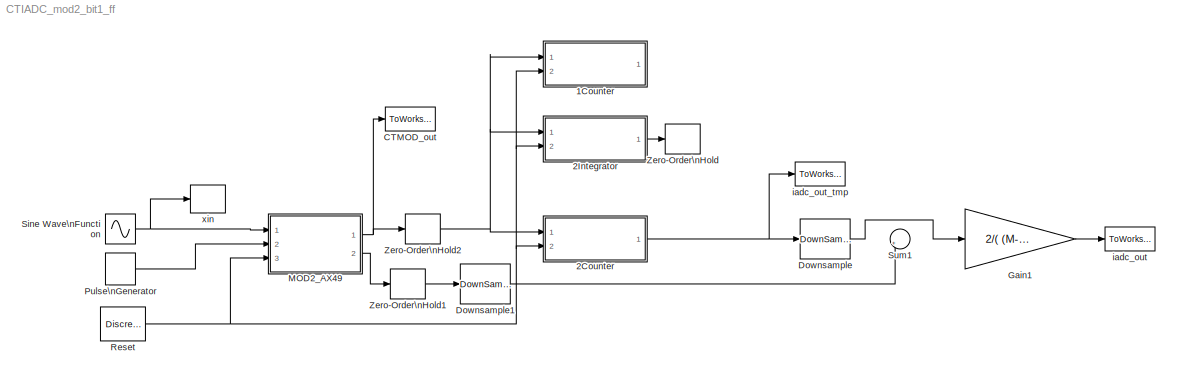
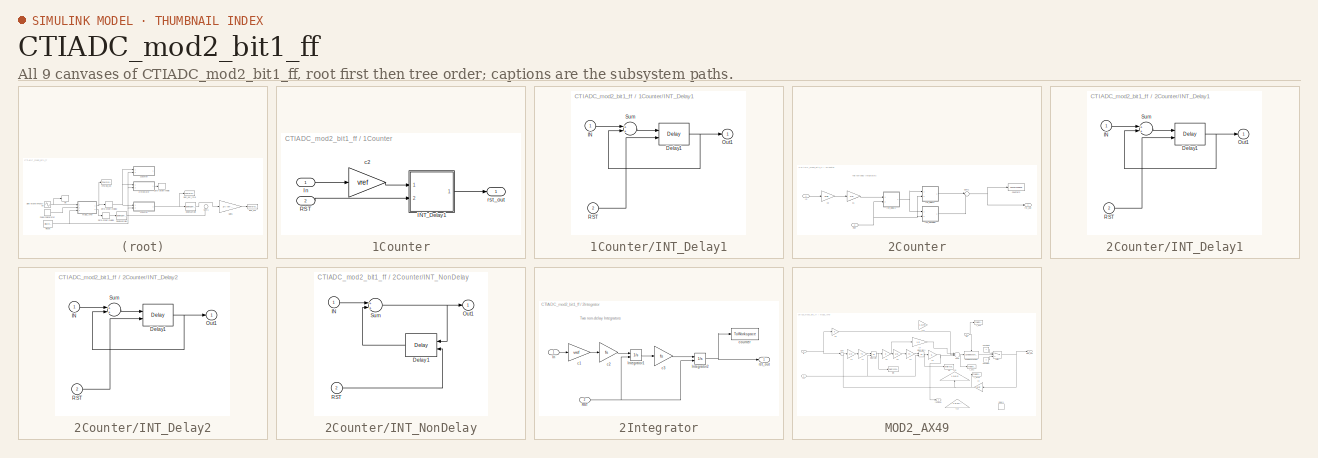
[diagram: thumbnail index - all 9 canvases of the model, root first then tree order]
MODEL CTIADC_mod2_bit1_ff
KIND model
BLOCK [SubSystem] 1Counter
  Commented = on
  Ports = [2, 1]
  RequestExecContextInheritance = off
  SID = 1295
BLOCK [SubSystem] 1Counter/INT_Delay1
  Ports = [2, 1]
  RequestExecContextInheritance = off
  SID = 1298
BLOCK [Delay] 1Counter/INT_Delay1/Delay1
  DelayLength = 1
  ExternalReset = Rising
  InitialCondition = 0
  InputPortMap = u0,r5
  Ports = [2, 1]
  SID = 1301
  UserData = DataTag0
  UserDataPersistent = on
BLOCK [Inport] 1Counter/INT_Delay1/IN
  IconDisplay = Port number
  SID = 1299
BLOCK [Outport] 1Counter/INT_Delay1/Out1
  IconDisplay = Port number
  SID = 1303
  VectorParamsAs1DForOutWhenUnconnected = off
BLOCK [Inport] 1Counter/INT_Delay1/RST
  IconDisplay = Port number
  Port = 2
  SID = 1300
BLOCK [Sum] 1Counter/INT_Delay1/Sum
  Ports = [2, 1]
  SID = 1302
BLOCK [Inport] 1Counter/In
  IconDisplay = Port number
  SID = 1296
BLOCK [Inport] 1Counter/RST
  IconDisplay = Port number
  Port = 2
  SID = 1297
BLOCK [Gain] 1Counter/c2
  Gain = vref
  SID = 1318
BLOCK [Outport] 1Counter/rst_out
  IconDisplay = Port number
  SID = 1320
  VectorParamsAs1DForOutWhenUnconnected = off
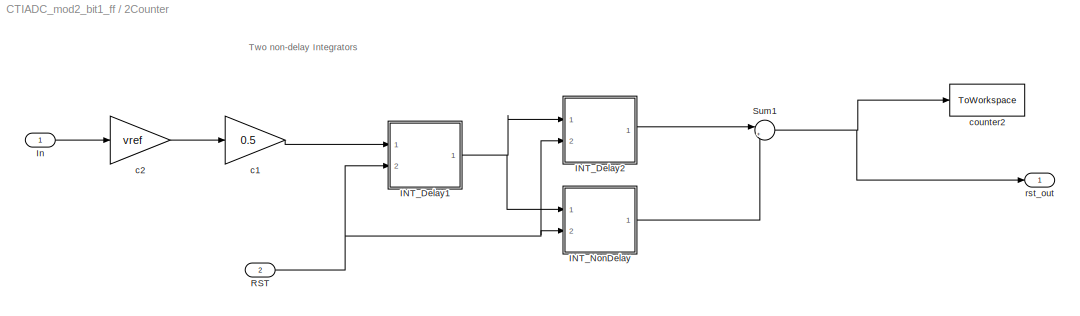
BLOCK [SubSystem] 2Counter
  Ports = [2, 1]
  RequestExecContextInheritance = off
  SID = 1257
BLOCK [SubSystem] 2Counter/INT_Delay1
  Ports = [2, 1]
  RequestExecContextInheritance = off
  SID = 1261
BLOCK [Delay] 2Counter/INT_Delay1/Delay1
  DelayLength = 1
  ExternalReset = Rising
  InitialCondition = 0
  InputPortMap = u0,r5
  Ports = [2, 1]
  SID = 1264
  UserData = DataTag1
  UserDataPersistent = on
BLOCK [Inport] 2Counter/INT_Delay1/IN
  IconDisplay = Port number
  SID = 1262
BLOCK [Outport] 2Counter/INT_Delay1/Out1
  IconDisplay = Port number
  SID = 1266
  VectorParamsAs1DForOutWhenUnconnected = off
BLOCK [Inport] 2Counter/INT_Delay1/RST
  IconDisplay = Port number
  Port = 2
  SID = 1263
BLOCK [Sum] 2Counter/INT_Delay1/Sum
  Ports = [2, 1]
  SID = 1265
BLOCK [SubSystem] 2Counter/INT_Delay2
  Ports = [2, 1]
  RequestExecContextInheritance = off
  SID = 1267
BLOCK [Delay] 2Counter/INT_Delay2/Delay1
  DelayLength = 1
  ExternalReset = Rising
  InitialCondition = 0
  InputPortMap = u0,r5
  Ports = [2, 1]
  SID = 1270
  UserData = DataTag2
  UserDataPersistent = on
BLOCK [Inport] 2Counter/INT_Delay2/IN
  IconDisplay = Port number
  SID = 1268
BLOCK [Outport] 2Counter/INT_Delay2/Out1
  IconDisplay = Port number
  SID = 1272
  VectorParamsAs1DForOutWhenUnconnected = off
BLOCK [Inport] 2Counter/INT_Delay2/RST
  IconDisplay = Port number
  Port = 2
  SID = 1269
BLOCK [Sum] 2Counter/INT_Delay2/Sum
  Ports = [2, 1]
  SID = 1271
BLOCK [SubSystem] 2Counter/INT_NonDelay
  Ports = [2, 1]
  RequestExecContextInheritance = off
  SID = 1277
BLOCK [Delay] 2Counter/INT_NonDelay/Delay1
  DelayLength = 1
  ExternalReset = Rising
  InitialCondition = 0
  InputPortMap = u0,r5
  Ports = [2, 1]
  SID = 1280
  UserData = DataTag3
  UserDataPersistent = on
BLOCK [Inport] 2Counter/INT_NonDelay/IN
  IconDisplay = Port number
  SID = 1278
BLOCK [Outport] 2Counter/INT_NonDelay/Out1
  IconDisplay = Port number
  SID = 1282
  VectorParamsAs1DForOutWhenUnconnected = off
BLOCK [Inport] 2Counter/INT_NonDelay/RST
  IconDisplay = Port number
  Port = 2
  SID = 1279
BLOCK [Sum] 2Counter/INT_NonDelay/Sum
  Ports = [2, 1]
  SID = 1281
BLOCK [Inport] 2Counter/In
  IconDisplay = Port number
  SID = 1258
BLOCK [Inport] 2Counter/RST
  IconDisplay = Port number
  Port = 2
  SID = 1259
BLOCK [Sum] 2Counter/Sum1
  IconShape = round
  InputSameDT = off
  Inputs = |++
  OutDataTypeStr = Inherit: Inherit via internal rule
  Ports = [2, 1]
  SID = 1283
  SaturateOnIntegerOverflow = off
BLOCK [Gain] 2Counter/c1
  Gain = 0.5
  SID = 1273
BLOCK [Gain] 2Counter/c2
  Gain = vref
  SID = 1294
BLOCK [ToWorkspace] 2Counter/counter2
  MaxDataPoints = inf
  Ports = [1]
  SID = 1274
  SampleTime = -1
  VariableName = counter2
BLOCK [Outport] 2Counter/rst_out
  IconDisplay = Port number
  SID = 1275
  VectorParamsAs1DForOutWhenUnconnected = off
BLOCK [SubSystem] 2Integrator
  Commented = on
  Ports = [2, 1]
  RequestExecContextInheritance = off
  SID = 1233
BLOCK [Inport] 2Integrator/In
  IconDisplay = Port number
  SID = 1234
BLOCK [Integrator] 2Integrator/Integrator1
  ExternalReset = rising
  Ports = [2, 1]
  SID = 1253
BLOCK [Integrator] 2Integrator/Integrator2
  ExternalReset = rising
  Ports = [2, 1]
  SID = 1254
BLOCK [Inport] 2Integrator/RST
  IconDisplay = Port number
  Port = 2
  SID = 1235
BLOCK [Gain] 2Integrator/c1
  Gain = vref
  SID = 1249
BLOCK [Gain] 2Integrator/c2
  Gain = fs
  SID = 1285
BLOCK [Gain] 2Integrator/c3
  Gain = fs
  SID = 1286
BLOCK [ToWorkspace] 2Integrator/counter
  MaxDataPoints = inf
  Ports = [1]
  SID = 1250
  SampleTime = -1
  VariableName = counter
BLOCK [Outport] 2Integrator/rst_out
  IconDisplay = Port number
  SID = 1251
  VectorParamsAs1DForOutWhenUnconnected = off
BLOCK [ToWorkspace] CTMOD_out
  Commented = on
  MaxDataPoints = inf
  Ports = [1]
  SID = 1289
  SampleTime = Ts
  VariableName = CTMOD_out
BLOCK [DownSample] Downsample
  InputProcessing = Elements as channels (sample based)
  N = OSR
  RateOptions = Allow multirate processing
  SID = 1236
  phase = OSR-1
BLOCK [DownSample] Downsample1
  InputProcessing = Elements as channels (sample based)
  N = OSR
  RateOptions = Allow multirate processing
  SID = 1292
  phase = OSR-1
BLOCK [Gain] Gain1
  Gain = 2/( (M-1)*(M) )
  OutDataTypeStr = Inherit: Inherit via internal rule
  ParamDataTypeStr = Inherit: Inherit via internal rule
  SID = 1256
  SaturateOnIntegerOverflow = off
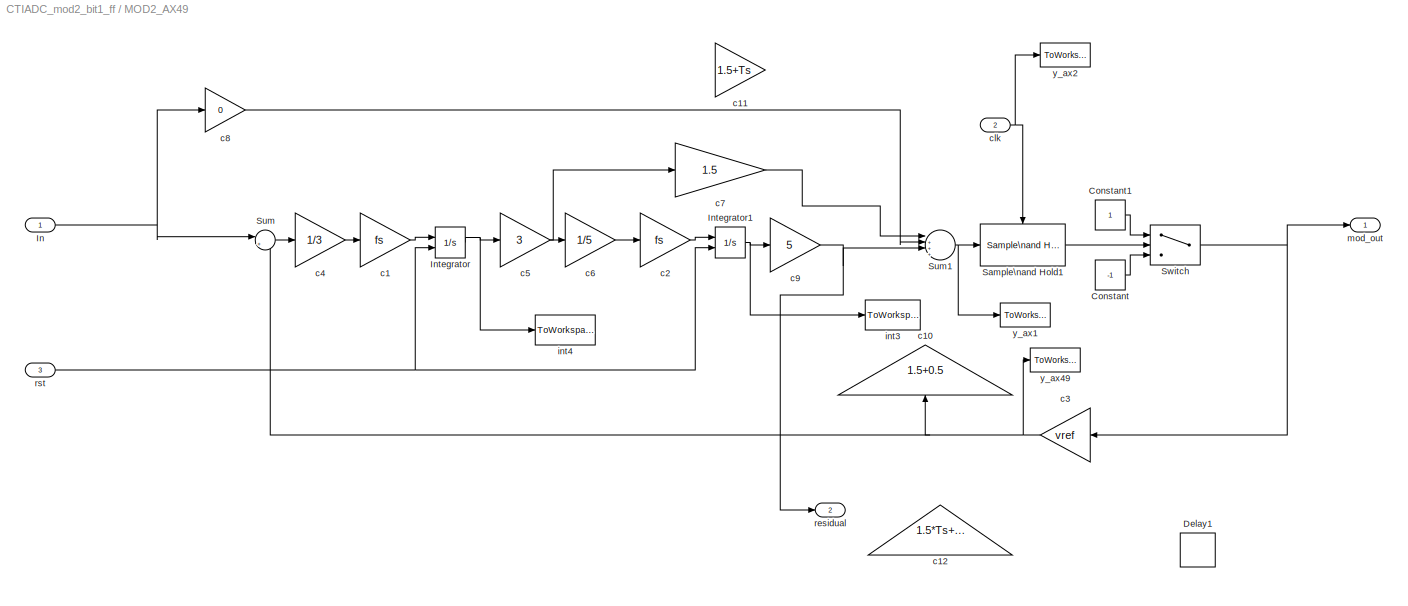
BLOCK [SubSystem] MOD2_AX49
  Ports = [3, 2]
  RequestExecContextInheritance = off
  SID = 988
BLOCK [Constant] MOD2_AX49/Constant
  SID = 1156
  Value = -1
BLOCK [Constant] MOD2_AX49/Constant1
  SID = 1157
BLOCK [Delay] MOD2_AX49/Delay1
  Commented = on
  DelayLength = 1
  InitialCondition = 0
  InputPortMap = u0
  Ports = [1, 1]
  SID = 1229
  SampleTime = Ts
BLOCK [Inport] MOD2_AX49/In
  IconDisplay = Port number
  SID = 989
BLOCK [Integrator] MOD2_AX49/Integrator
  ExternalReset = rising
  Ports = [2, 1]
  SID = 1124
BLOCK [Integrator] MOD2_AX49/Integrator1
  ExternalReset = rising
  Ports = [2, 1]
  SID = 1164
BLOCK [Reference] MOD2_AX49/Sample\nand Hold1  REF=dspsigops/Sample\nand Hold
  Ports = [1, 1, 0, 1]
  RTWMemSecDataConstants = Inherit from model
  RTWMemSecDataInternal = Inherit from model
  RTWMemSecDataParameters = Inherit from model
  RTWMemSecFuncExecute = Inherit from model
  RTWMemSecFuncInitTerm = Inherit from model
  SID = 1174
  SourceBlock = dspsigops/Sample\nand Hold
  SourceProductBaseCode = DS
  SourceProductName = DSP System Toolbox
  SourceType = Sample and Hold
  initCond = 0
  latchinput = off
  trig = Rising edge
BLOCK [Sum] MOD2_AX49/Sum
  IconShape = round
  InputSameDT = off
  Inputs = |+-
  OutDataTypeStr = Inherit: Inherit via internal rule
  Ports = [2, 1]
  SID = 1134
  SaturateOnIntegerOverflow = off
BLOCK [Sum] MOD2_AX49/Sum1
  IconShape = round
  InputSameDT = off
  Inputs = |+++-
  OutDataTypeStr = Inherit: Inherit via internal rule
  Ports = [4, 1]
  SID = 1135
  SaturateOnIntegerOverflow = off
BLOCK [Switch] MOD2_AX49/Switch
  Criteria = u2 > Threshold
  InputSameDT = off
  SID = 1155
  SaturateOnIntegerOverflow = off
BLOCK [Gain] MOD2_AX49/c1
  Gain = fs
  SID = 1158
BLOCK [Gain] MOD2_AX49/c10
  Commented = on
  Gain = 1.5+0.5
  SID = 1170
BLOCK [Gain] MOD2_AX49/c11
  Commented = on
  Gain = 1.5+Ts
  SID = 1171
BLOCK [Gain] MOD2_AX49/c12
  Commented = on
  Gain = 1.5*Ts+0.5*Ts*Ts
  SID = 1172
BLOCK [Gain] MOD2_AX49/c2
  Gain = fs
  SID = 1165
BLOCK [Gain] MOD2_AX49/c3
  Gain = vref
  SID = 1154
BLOCK [Gain] MOD2_AX49/c4
  Gain = 1/3
  SID = 1160
BLOCK [Gain] MOD2_AX49/c5
  Gain = 3
  SID = 1161
BLOCK [Gain] MOD2_AX49/c6
  Gain = 1/5
  SID = 1162
BLOCK [Gain] MOD2_AX49/c7
  Gain = 1.5
  SID = 1071
BLOCK [Gain] MOD2_AX49/c8
  Gain = 0
  SID = 1072
BLOCK [Gain] MOD2_AX49/c9
  Gain = 5
  SID = 1163
BLOCK [Inport] MOD2_AX49/clk
  IconDisplay = Port number
  Port = 2
  SID = 1173
BLOCK [ToWorkspace] MOD2_AX49/int3
  MaxDataPoints = inf
  Ports = [1]
  SID = 1061
  SampleTime = -1
  VariableName = int2
BLOCK [ToWorkspace] MOD2_AX49/int4
  MaxDataPoints = inf
  Ports = [1]
  SID = 1060
  SampleTime = -1
  VariableName = int1
BLOCK [Outport] MOD2_AX49/mod_out
  IconDisplay = Port number
  SID = 1058
  VectorParamsAs1DForOutWhenUnconnected = off
BLOCK [Outport] MOD2_AX49/residual
  IconDisplay = Port number
  Port = 2
  SID = 1232
  VectorParamsAs1DForOutWhenUnconnected = off
BLOCK [Inport] MOD2_AX49/rst
  IconDisplay = Port number
  Port = 3
  SID = 1230
BLOCK [ToWorkspace] MOD2_AX49/y_ax1
  MaxDataPoints = inf
  Ports = [1]
  SID = 1178
  SampleTime = Ts/4
  SaveFormat = Structure With Time
  VariableName = y_add
BLOCK [ToWorkspace] MOD2_AX49/y_ax2
  MaxDataPoints = inf
  Ports = [1]
  SID = 1179
  SampleTime = Ts/4
  SaveFormat = Structure With Time
  VariableName = y_clk
BLOCK [ToWorkspace] MOD2_AX49/y_ax49
  MaxDataPoints = inf
  Ports = [1]
  SID = 1177
  SampleTime = Ts/4
  SaveFormat = Structure With Time
  VariableName = y_fb
BLOCK [DiscretePulseGenerator] Pulse\nGenerator
  Period = Ts
  Ports = [0, 1]
  PulseType = Time based
  PulseWidth = 50
  SID = 1129
BLOCK [DiscretePulseGenerator] Reset
  Period = OSR
  Ports = [0, 1]
  SID = 1231
  SampleTime = Tclk
BLOCK [Sin] Sine Wave\nFunction
  Amplitude = vin_amp
  Frequency = fsig*2*pi
  Ports = [0, 1]
  SID = 1130
  SampleTime = 0
BLOCK [Sum] Sum1
  Commented = on
  IconShape = round
  InputSameDT = off
  Inputs = |++
  OutDataTypeStr = Inherit: Inherit via internal rule
  Ports = [2, 1]
  SID = 1255
  SaturateOnIntegerOverflow = off
BLOCK [ZeroOrderHold] Zero-Order\nHold
  Commented = on
  SID = 1284
  SampleTime = Ts
BLOCK [ZeroOrderHold] Zero-Order\nHold1
  SID = 1293
  SampleTime = Ts
BLOCK [ZeroOrderHold] Zero-Order\nHold2
  SID = 1322
  SampleTime = Ts
BLOCK [ToWorkspace] iadc_out
  MaxDataPoints = inf
  Ports = [1]
  SID = 1059
  SampleTime = -1
  VariableName = iadc_out
BLOCK [ToWorkspace] iadc_out_tmp
  Commented = on
  MaxDataPoints = inf
  Ports = [1]
  SID = 1287
  SampleTime = Ts
  VariableName = iadc_out_tmp
BLOCK [ToWorkspace] xin
  MaxDataPoints = inf
  Ports = [1]
  SID = 60
  SampleTime = -1
  VariableName = xin
ANNOTATION 2Counter: Two non-delay Integrators
ANNOTATION 2Integrator: Two non-delay Integrators
NET 1Counter/INT_Delay1/Delay1:1 -> 1Counter/INT_Delay1/Out1:1, 1Counter/INT_Delay1/Sum:2
LINE 1Counter/INT_Delay1/IN:1 -> 1Counter/INT_Delay1/Sum:1
LINE 1Counter/INT_Delay1/RST:1 -> 1Counter/INT_Delay1/Delay1:2
LINE 1Counter/INT_Delay1/Sum:1 -> 1Counter/INT_Delay1/Delay1:1
LINE 1Counter/INT_Delay1:1 -> 1Counter/rst_out:1
LINE 1Counter/In:1 -> 1Counter/c2:1
LINE 1Counter/RST:1 -> 1Counter/INT_Delay1:2
LINE 1Counter/c2:1 -> 1Counter/INT_Delay1:1
NET 2Counter/INT_Delay1/Delay1:1 -> 2Counter/INT_Delay1/Out1:1, 2Counter/INT_Delay1/Sum:2
LINE 2Counter/INT_Delay1/IN:1 -> 2Counter/INT_Delay1/Sum:1
LINE 2Counter/INT_Delay1/RST:1 -> 2Counter/INT_Delay1/Delay1:2
LINE 2Counter/INT_Delay1/Sum:1 -> 2Counter/INT_Delay1/Delay1:1
NET 2Counter/INT_Delay1:1 -> 2Counter/INT_Delay2:1, 2Counter/INT_NonDelay:1
NET 2Counter/INT_Delay2/Delay1:1 -> 2Counter/INT_Delay2/Out1:1, 2Counter/INT_Delay2/Sum:2
LINE 2Counter/INT_Delay2/IN:1 -> 2Counter/INT_Delay2/Sum:1
LINE 2Counter/INT_Delay2/RST:1 -> 2Counter/INT_Delay2/Delay1:2
LINE 2Counter/INT_Delay2/Sum:1 -> 2Counter/INT_Delay2/Delay1:1
LINE 2Counter/INT_Delay2:1 -> 2Counter/Sum1:1
LINE 2Counter/INT_NonDelay/Delay1:1 -> 2Counter/INT_NonDelay/Sum:2
LINE 2Counter/INT_NonDelay/IN:1 -> 2Counter/INT_NonDelay/Sum:1
LINE 2Counter/INT_NonDelay/RST:1 -> 2Counter/INT_NonDelay/Delay1:2
NET 2Counter/INT_NonDelay/Sum:1 -> 2Counter/INT_NonDelay/Delay1:1, 2Counter/INT_NonDelay/Out1:1
LINE 2Counter/INT_NonDelay:1 -> 2Counter/Sum1:2
LINE 2Counter/In:1 -> 2Counter/c2:1
NET 2Counter/RST:1 -> 2Counter/INT_Delay1:2, 2Counter/INT_Delay2:2, 2Counter/INT_NonDelay:2
NET 2Counter/Sum1:1 -> 2Counter/counter2:1, 2Counter/rst_out:1
LINE 2Counter/c1:1 -> 2Counter/INT_Delay1:1
LINE 2Counter/c2:1 -> 2Counter/c1:1
NET 2Counter:1 -> Downsample:1, iadc_out_tmp:1
LINE 2Integrator/In:1 -> 2Integrator/c1:1
LINE 2Integrator/Integrator1:1 -> 2Integrator/c3:1
NET 2Integrator/Integrator2:1 -> 2Integrator/counter:1, 2Integrator/rst_out:1
NET 2Integrator/RST:1 -> 2Integrator/Integrator1:2, 2Integrator/Integrator2:2
LINE 2Integrator/c1:1 -> 2Integrator/c2:1
LINE 2Integrator/c2:1 -> 2Integrator/Integrator1:1
LINE 2Integrator/c3:1 -> 2Integrator/Integrator2:1
LINE 2Integrator:1 -> Zero-Order\nHold:1
LINE Downsample1:1 -> Sum1:2
LINE Downsample:1 -> Gain1:1
LINE Gain1:1 -> iadc_out:1
LINE MOD2_AX49/Constant1:1 -> MOD2_AX49/Switch:1
LINE MOD2_AX49/Constant:1 -> MOD2_AX49/Switch:3
NET MOD2_AX49/In:1 -> MOD2_AX49/Sum:1, MOD2_AX49/c8:1
NET MOD2_AX49/Integrator1:1 -> MOD2_AX49/c9:1, MOD2_AX49/int3:1
NET MOD2_AX49/Integrator:1 -> MOD2_AX49/c5:1, MOD2_AX49/int4:1
LINE MOD2_AX49/Sample\nand Hold1:1 -> MOD2_AX49/Switch:2
NET MOD2_AX49/Sum1:1 -> MOD2_AX49/Sample\nand Hold1:1, MOD2_AX49/y_ax1:1
LINE MOD2_AX49/Sum:1 -> MOD2_AX49/c4:1
NET MOD2_AX49/Switch:1 -> MOD2_AX49/c3:1, MOD2_AX49/mod_out:1
LINE MOD2_AX49/c1:1 -> MOD2_AX49/Integrator:1
LINE MOD2_AX49/c2:1 -> MOD2_AX49/Integrator1:1
NET MOD2_AX49/c3:1 -> MOD2_AX49/Sum:2, MOD2_AX49/c10:1, MOD2_AX49/y_ax49:1
LINE MOD2_AX49/c4:1 -> MOD2_AX49/c1:1
NET MOD2_AX49/c5:1 -> MOD2_AX49/c6:1, MOD2_AX49/c7:1
LINE MOD2_AX49/c6:1 -> MOD2_AX49/c2:1
LINE MOD2_AX49/c7:1 -> MOD2_AX49/Sum1:1
LINE MOD2_AX49/c8:1 -> MOD2_AX49/Sum1:2
NET MOD2_AX49/c9:1 -> MOD2_AX49/Sum1:3, MOD2_AX49/residual:1
NET MOD2_AX49/clk:1 -> MOD2_AX49/Sample\nand Hold1:trigger, MOD2_AX49/y_ax2:1
NET MOD2_AX49/rst:1 -> MOD2_AX49/Integrator1:2, MOD2_AX49/Integrator:2
NET MOD2_AX49:1 -> CTMOD_out:1, Zero-Order\nHold2:1
LINE MOD2_AX49:2 -> Zero-Order\nHold1:1
LINE Pulse\nGenerator:1 -> MOD2_AX49:2
NET Reset:1 -> 1Counter:2, 2Counter:2, 2Integrator:2, MOD2_AX49:3
NET Sine Wave\nFunction:1 -> MOD2_AX49:1, xin:1
LINE Zero-Order\nHold1:1 -> Downsample1:1
NET Zero-Order\nHold2:1 -> 1Counter:1, 2Counter:1, 2Integrator:1
note: NET lines group one-source signal fan-out (src -> all destinations, sorted); 1:1 wires keep LINE
